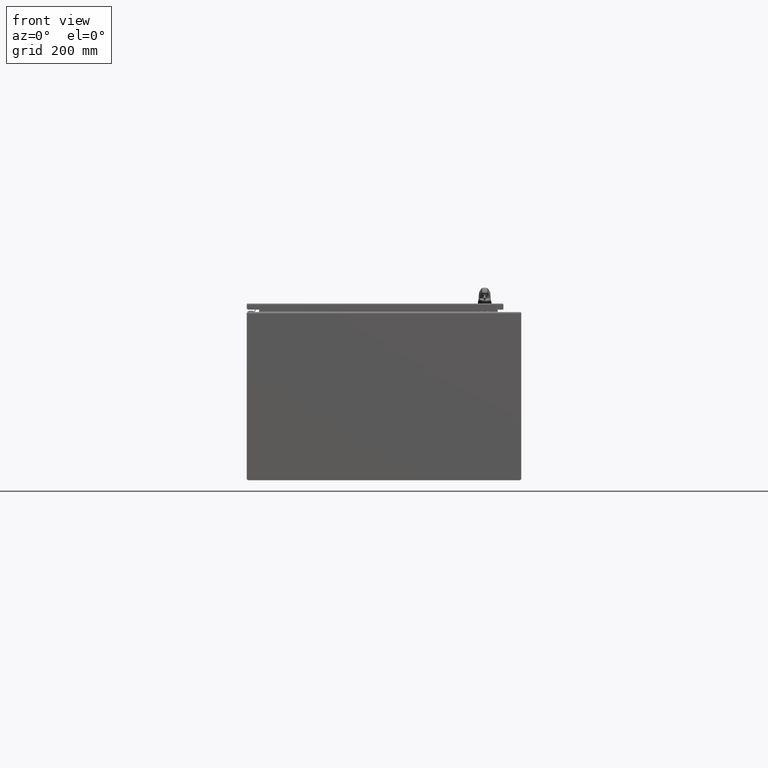
[diagram: clean part render]
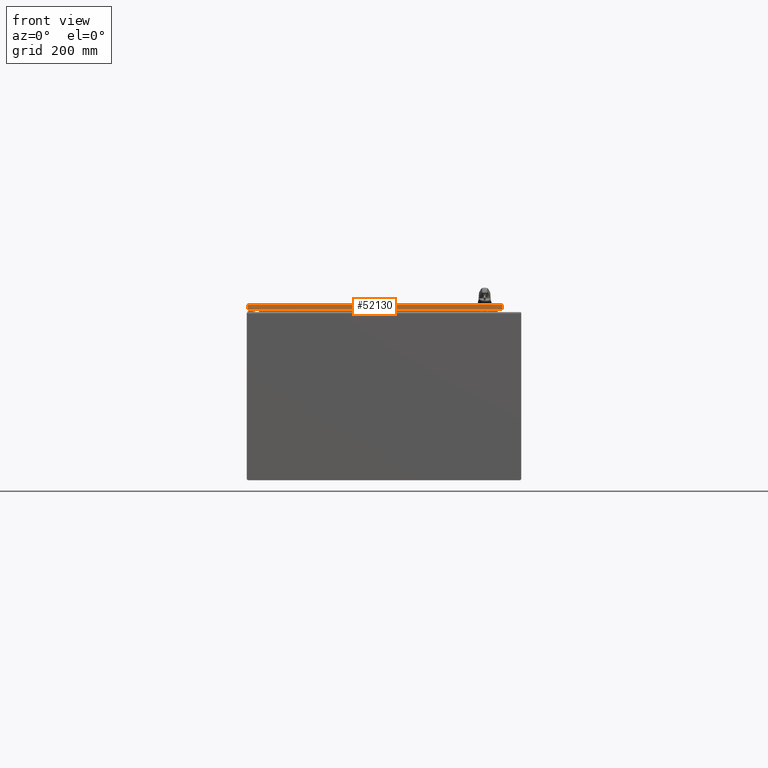
[diagram: same view with one face highlighted and labeled with its STEP entity id]
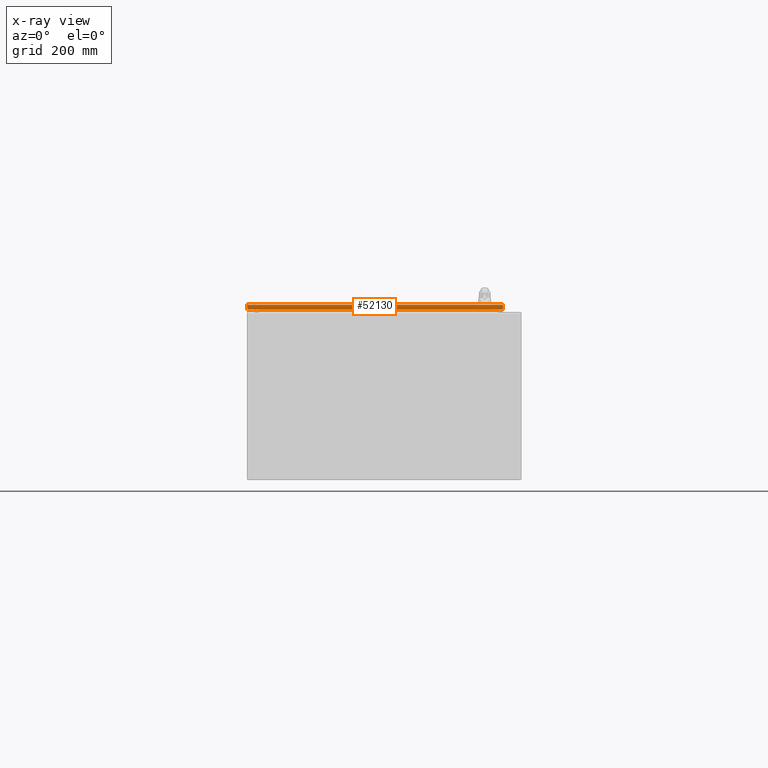
[diagram: x-ray of the same camera — body ghosted, the highlighted face saturated]
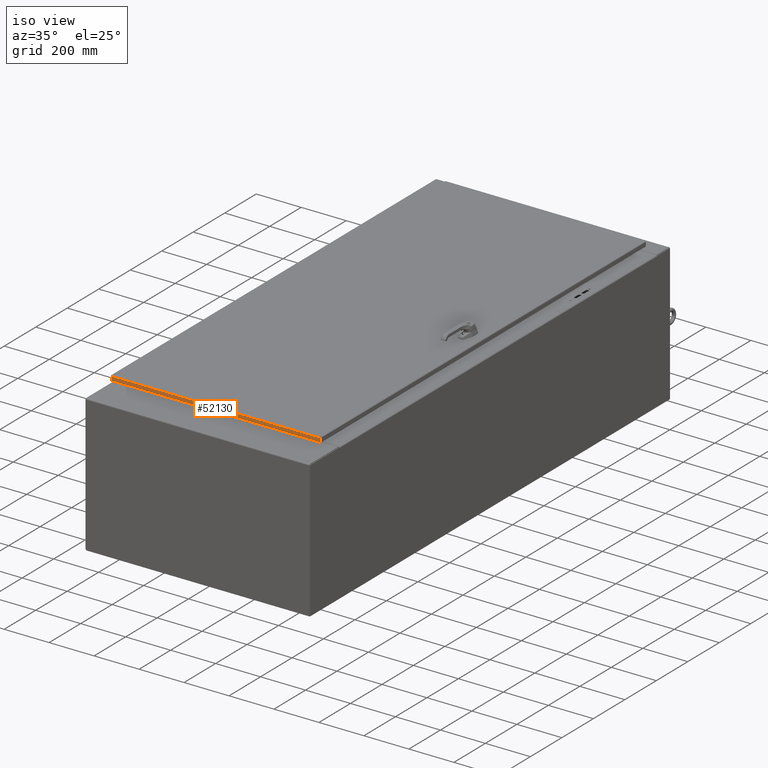
[diagram: same view with one face highlighted and labeled with its STEP entity id]
A machine part, front view. The second image highlights one B-rep face of the part: STEP entity #52130.
The next image is the same camera in x-ray: the body ghosted, the highlighted face saturated — about 0% of this face is hidden behind the body in this view.
A second angle (iso view) of the same face is appended — the face is thin or edge-on in the first view.
In plain terms, the highlighted planar face has unit normal (-0, -1, -0).
Its self-contained STEP definition (entity closure, byte-faithful):
#3582=PLANE('',#57390);
#5143=FACE_OUTER_BOUND('',#8423,.T.);
#8423=EDGE_LOOP('',(#37750,#37751,#37752,#37753));
#12110=LINE('',#85792,#15765);
#12116=LINE('',#85825,#15771);
#12120=LINE('',#85899,#15775);
#12122=LINE('',#85902,#15777);
#15765=VECTOR('',#65983,0.393700787401575);
#15771=VECTOR('',#65993,0.393700787401575);
#15775=VECTOR('',#65999,0.393700787401575);
#15777=VECTOR('',#66003,0.393700787401575);
#22523=VERTEX_POINT('',#85790);
#22524=VERTEX_POINT('',#85791);
#22529=VERTEX_POINT('',#85824);
#22530=VERTEX_POINT('',#85898);
#28048=EDGE_CURVE('',#22523,#22524,#12110,.T.);
#28056=EDGE_CURVE('',#22529,#22524,#12116,.T.);
#28062=EDGE_CURVE('',#22523,#22530,#12120,.T.);
#28064=EDGE_CURVE('',#22530,#22529,#12122,.T.);
#37750=ORIENTED_EDGE('',*,*,#28048,.T.);
#37751=ORIENTED_EDGE('',*,*,#28056,.F.);
#37752=ORIENTED_EDGE('',*,*,#28064,.F.);
#37753=ORIENTED_EDGE('',*,*,#28062,.F.);
#52130=ADVANCED_FACE('',(#5143),#3582,.T.);
#57390=AXIS2_PLACEMENT_3D('',#85903,#66004,#66005);
#65983=DIRECTION('',(-1.,1.49508358915599E-20,-8.05895334381284E-35));
#65993=DIRECTION('',(0.,5.39030285815812E-15,1.));
#65999=DIRECTION('',(0.,-5.39030285815812E-15,-1.));
#66003=DIRECTION('',(-1.,0.,0.));
#66004=DIRECTION('center_axis',(-1.49508358915599E-20,-1.,5.39445471638543E-15));
#66005=DIRECTION('ref_axis',(1.,-1.49508358915599E-20,8.05895334381284E-35));
#85790=CARTESIAN_POINT('',(18.3015428932188,-40.6875,-0.0937499999999987));
#85791=CARTESIAN_POINT('',(-18.3015428932188,-40.6875,-0.0937499999999987));
#85792=CARTESIAN_POINT('',(8.28296263088788E-15,-40.6875,-0.0937499999999987));
#85824=CARTESIAN_POINT('',(-18.3015428932188,-40.6875,-0.771000000000003));
#85825=CARTESIAN_POINT('',(-18.3015428932188,-40.6875,-0.0937499999999987));
#85898=CARTESIAN_POINT('',(18.3015428932188,-40.6875,-0.771000000000003));
#85899=CARTESIAN_POINT('',(18.3015428932188,-40.6875,-0.0937499999999987));
#85902=CARTESIAN_POINT('',(18.3015428932188,-40.6875,-0.771000000000003));
#85903=CARTESIAN_POINT('Origin',(5.37627685153127E-15,-40.6875,-0.329035392753811));